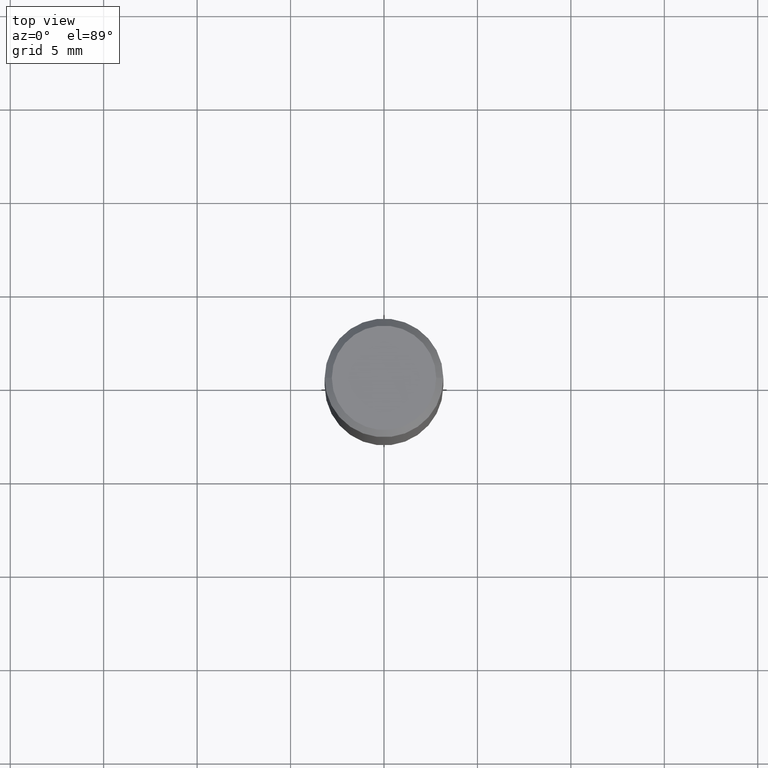
[diagram: clean part render]
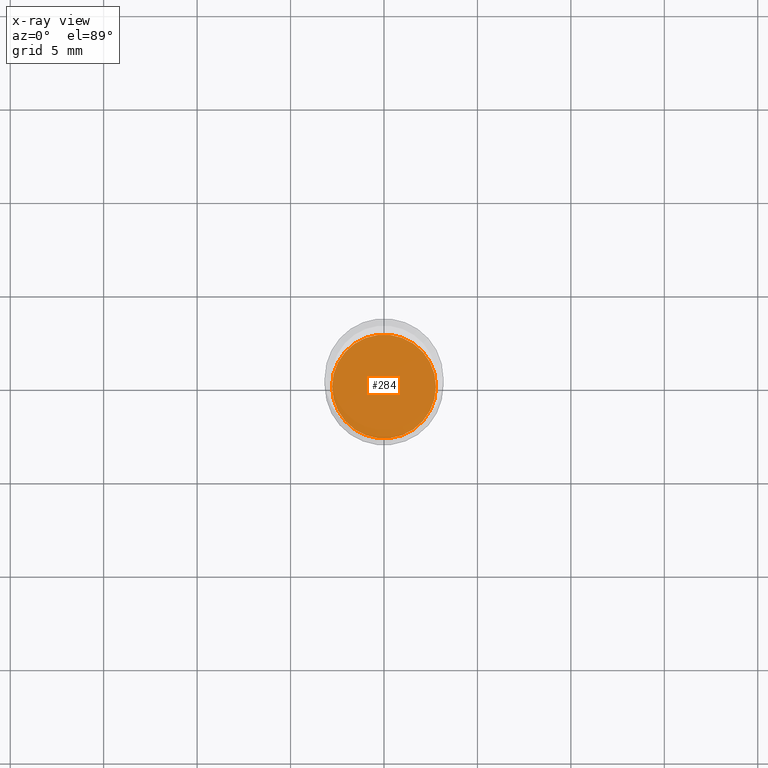
[diagram: x-ray — body ghosted, one internal face saturated and labeled with its STEP entity id]
A machine part, top view, then the same camera in x-ray: the body is ghosted and one INTERNAL B-rep face — a face not visible from any outside direction — is saturated and labeled: STEP entity #284.
In plain terms, the highlighted planar face has unit normal (0, -0, -1).
Its self-contained STEP definition (entity closure, byte-faithful):
#7 = CIRCLE ( 'NONE', #408, 0.1093999999999999972 ) ;
#24 = ORIENTED_EDGE ( 'NONE', *, *, #37, .T. ) ;
#37 = EDGE_CURVE ( 'NONE', #432, #129, #299, .T. ) ;
#69 = FACE_OUTER_BOUND ( 'NONE', #235, .T. ) ;
#87 = CARTESIAN_POINT ( 'NONE',  ( 2.599533340974800436E-29, -3.711444663190264104E-15, -1.063000000000000167 ) ) ;
#116 = AXIS2_PLACEMENT_3D ( 'NONE', #202, #338, #348 ) ;
#125 = DIRECTION ( 'NONE',  ( 1.000000000000000000, -6.982962677686269866E-15, 0.000000000000000000 ) ) ;
#129 = VERTEX_POINT ( 'NONE', #153 ) ;
#153 = CARTESIAN_POINT ( 'NONE',  ( 0.1093999999999999972, -4.475380780129141676E-15, -1.063000000000000167 ) ) ;
#158 = EDGE_CURVE ( 'NONE', #129, #432, #7, .T. ) ;
#197 = DIRECTION ( 'NONE',  ( -2.445468806185136597E-29, 3.491481338843145583E-15, 1.000000000000000000 ) ) ;
#202 = CARTESIAN_POINT ( 'NONE',  ( 7.639361169389034070E-16, 0.1093999999999962919, -1.063000000000000611 ) ) ;
#210 = PLANE ( 'NONE',  #116 ) ;
#219 = DIRECTION ( 'NONE',  ( -2.445468806185136597E-29, 3.491481338843145583E-15, 1.000000000000000000 ) ) ;
#235 = EDGE_LOOP ( 'NONE', ( #413, #24 ) ) ;
#284 = ADVANCED_FACE ( 'NONE', ( #69 ), #210, .F. ) ;
#299 = CIRCLE ( 'NONE', #361, 0.1093999999999999972 ) ;
#338 = DIRECTION ( 'NONE',  ( 2.438088387897960049E-29, -3.491481338843145188E-15, -1.000000000000000000 ) ) ;
#348 = DIRECTION ( 'NONE',  ( -1.000000000000000000, 6.982962677686265922E-15, -4.876176775795935793E-29 ) ) ;
#349 = CARTESIAN_POINT ( 'NONE',  ( -0.1093999999999999972, -3.696999582805941951E-15, -1.063000000000000167 ) ) ;
#361 = AXIS2_PLACEMENT_3D ( 'NONE', #442, #219, #400 ) ;
#400 = DIRECTION ( 'NONE',  ( 1.000000000000000000, -6.982962677686269866E-15, 0.000000000000000000 ) ) ;
#408 = AXIS2_PLACEMENT_3D ( 'NONE', #87, #197, #125 ) ;
#413 = ORIENTED_EDGE ( 'NONE', *, *, #158, .T. ) ;
#432 = VERTEX_POINT ( 'NONE', #349 ) ;
#442 = CARTESIAN_POINT ( 'NONE',  ( 2.599533340974800436E-29, -3.711444663190264104E-15, -1.063000000000000167 ) ) ;